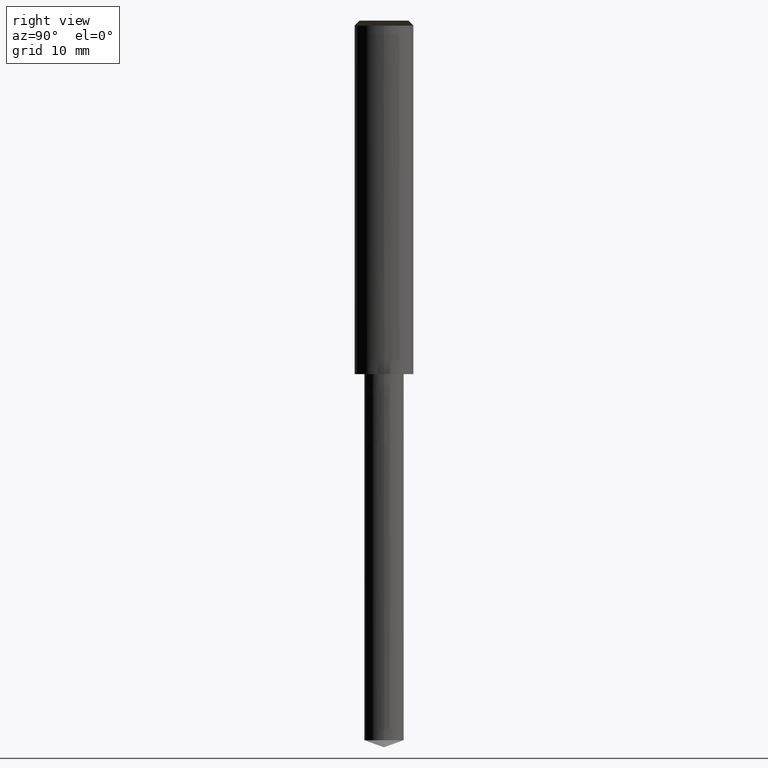
[diagram: clean part render]
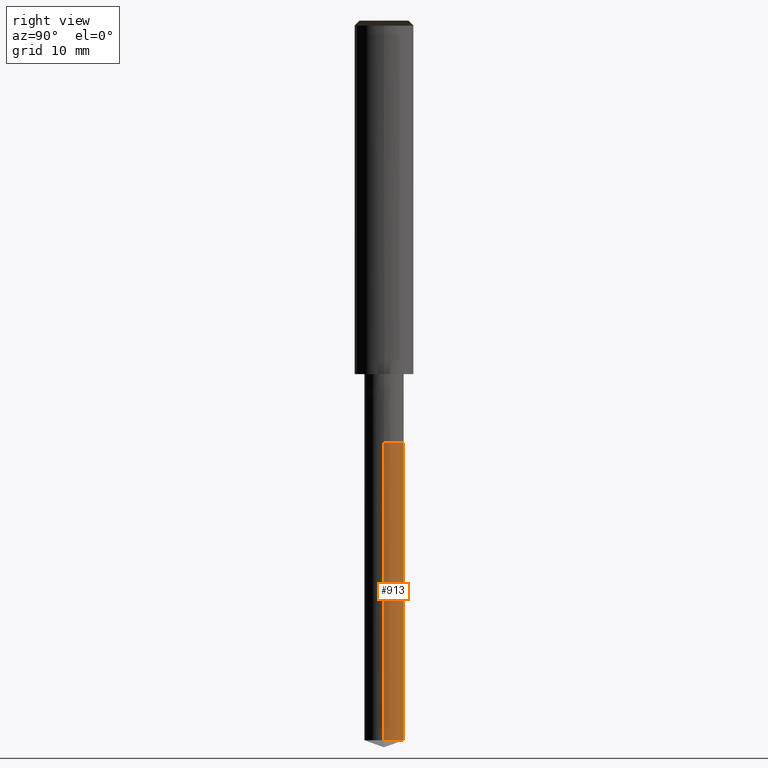
[diagram: same view with one face highlighted and labeled with its STEP entity id]
A machine part, right view. The second image highlights one B-rep face of the part: STEP entity #913.
In plain terms, the highlighted face is a freeform B-spline surface patch.
Its self-contained STEP definition (entity closure, byte-faithful):
#815=CARTESIAN_POINT('',(2.0,0.0,-37.272059531468));
#816=CARTESIAN_POINT('',(2.0,2.0,-37.272059531468));
#817=CARTESIAN_POINT('',(0.0,2.0,-37.272059531468));
#818=CARTESIAN_POINT('',(-2.0,2.0,-37.272059531468));
#819=CARTESIAN_POINT('',(-2.0,0.0,-37.272059531468));
#820=CARTESIAN_POINT('',(2.0,0.0,-7.0));
#821=CARTESIAN_POINT('',(2.0,2.0,-7.0));
#822=CARTESIAN_POINT('',(0.0,2.0,-7.0));
#823=CARTESIAN_POINT('',(-2.0,2.0,-7.0));
#824=CARTESIAN_POINT('',(-2.0,0.0,-7.0));
#894=(
BOUNDED_SURFACE()
B_SPLINE_SURFACE(1,2,(
(#815,#816,#817,#818,#819),
(#820,#821,#822,#823,#824)
), .UNSPECIFIED.,.F.,.F.,.F.)
B_SPLINE_SURFACE_WITH_KNOTS((2,2),(3,2,3),(
0.0,1.0),(
0.0,0.5,1.0), .UNSPECIFIED.)
GEOMETRIC_REPRESENTATION_ITEM()
RATIONAL_B_SPLINE_SURFACE(((1.0,0.707106781187,1.0,0.707106781187,1.0),
(1.0,0.707106781187,1.0,0.707106781187,1.0)
))
REPRESENTATION_ITEM('')
SURFACE()
);
#895=(
BOUNDED_CURVE()
B_SPLINE_CURVE(2,(#819,#818,#817,#816,#815),.UNSPECIFIED.,.F.,.F.)
B_SPLINE_CURVE_WITH_KNOTS((3,2,3),
(0.0,0.5,1.0),.UNSPECIFIED.)
CURVE()
GEOMETRIC_REPRESENTATION_ITEM()
RATIONAL_B_SPLINE_CURVE((1.0,0.707106781187,1.0,0.707106781187,1.0))
REPRESENTATION_ITEM('')
);
#896=(
BOUNDED_CURVE()
B_SPLINE_CURVE(1,(#815,#820),.UNSPECIFIED.,.F.,.F.)
B_SPLINE_CURVE_WITH_KNOTS((2,2),
(0.0,1.0),.UNSPECIFIED.)
CURVE()
GEOMETRIC_REPRESENTATION_ITEM()
RATIONAL_B_SPLINE_CURVE((1.0,1.0))
REPRESENTATION_ITEM('')
);
#897=(
BOUNDED_CURVE()
B_SPLINE_CURVE(2,(#820,#821,#822,#823,#824),.UNSPECIFIED.,.F.,.F.)
B_SPLINE_CURVE_WITH_KNOTS((3,2,3),
(0.0,0.5,1.0),.UNSPECIFIED.)
CURVE()
GEOMETRIC_REPRESENTATION_ITEM()
RATIONAL_B_SPLINE_CURVE((1.0,0.707106781187,1.0,0.707106781187,1.0))
REPRESENTATION_ITEM('')
);
#898=(
BOUNDED_CURVE()
B_SPLINE_CURVE(1,(#824,#819),.UNSPECIFIED.,.F.,.F.)
B_SPLINE_CURVE_WITH_KNOTS((2,2),
(0.0,1.0),.UNSPECIFIED.)
CURVE()
GEOMETRIC_REPRESENTATION_ITEM()
RATIONAL_B_SPLINE_CURVE((1.0,1.0))
REPRESENTATION_ITEM('')
);
#899=VERTEX_POINT('',#815);
#900=VERTEX_POINT('',#819);
#901=VERTEX_POINT('',#820);
#902=VERTEX_POINT('',#824);
#903=EDGE_CURVE('',#900,#899,#895,.T.);
#904=EDGE_CURVE('',#899,#901,#896,.T.);
#905=EDGE_CURVE('',#901,#902,#897,.T.);
#906=EDGE_CURVE('',#902,#900,#898,.T.);
#907=ORIENTED_EDGE('',*,*,#903,.T.);
#908=ORIENTED_EDGE('',*,*,#904,.T.);
#909=ORIENTED_EDGE('',*,*,#905,.T.);
#910=ORIENTED_EDGE('',*,*,#906,.T.);
#911=EDGE_LOOP('',(#907,#908,#909,#910));
#912=FACE_OUTER_BOUND('',#911,.T.);
#913=ADVANCED_FACE('',(#912),#894,.T.);